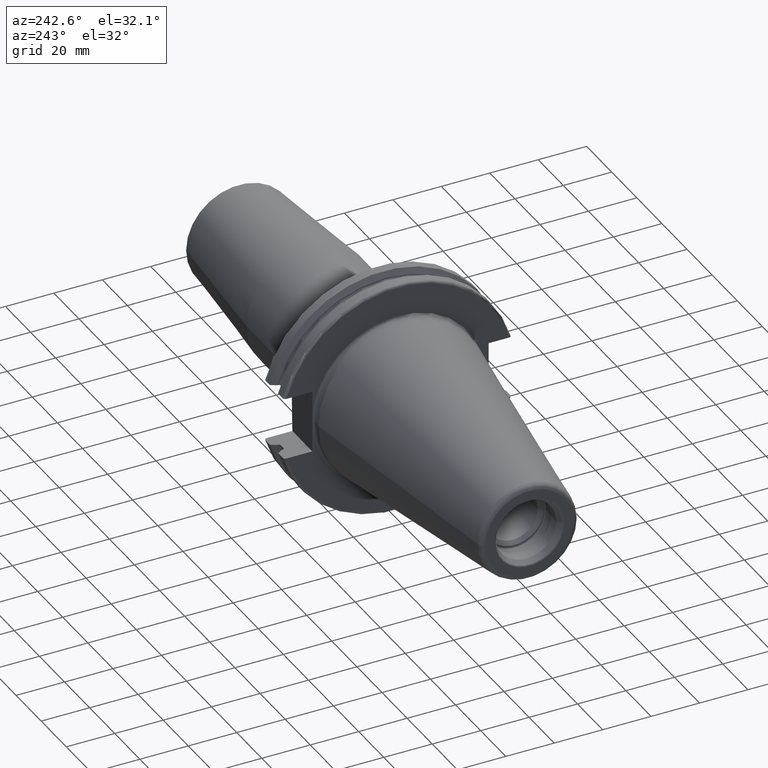
[diagram: clean part render]
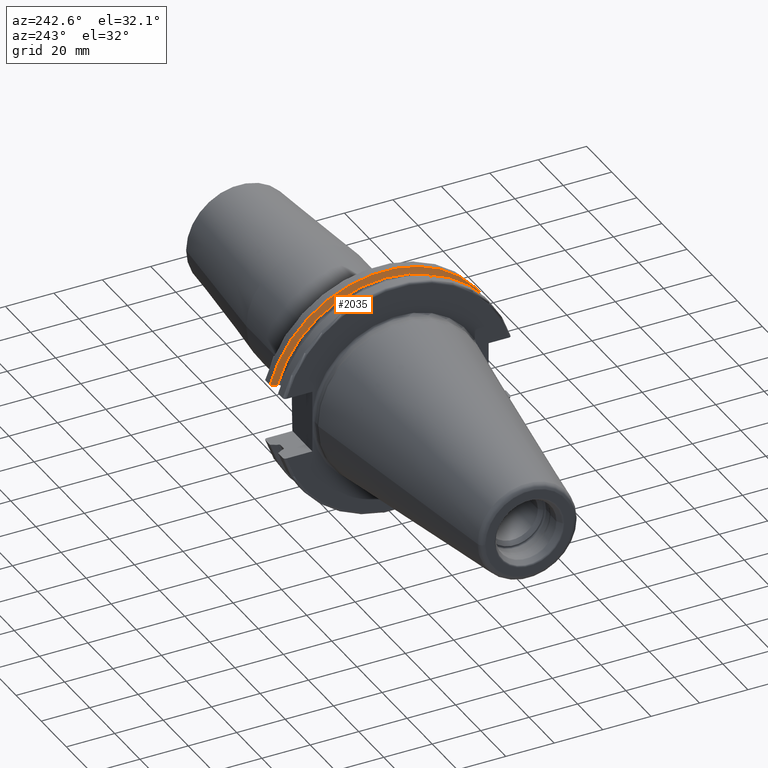
[diagram: same view with one face highlighted and labeled with its STEP entity id]
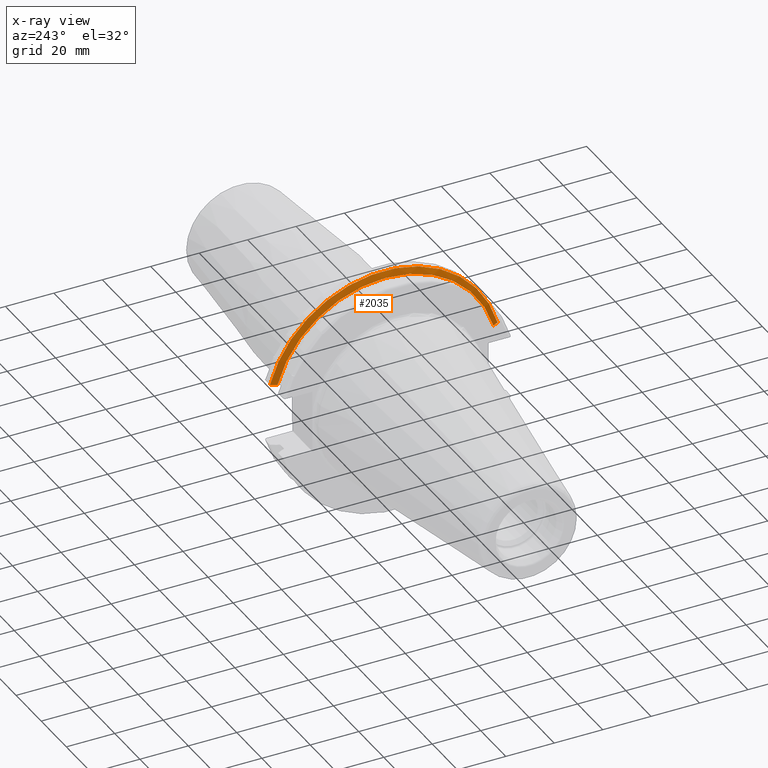
[diagram: x-ray of the same camera — body ghosted, the highlighted face saturated]
A machine part, auxiliary view. The second image highlights one B-rep face of the part: STEP entity #2035.
The next image is the same camera in x-ray: the body ghosted, the highlighted face saturated — about 0% of this face is hidden behind the body in this view.
In plain terms, the highlighted conical surface has half-angle 60 deg.
Its self-contained STEP definition (entity closure, byte-faithful):
#408=CARTESIAN_POINT('',(1.441537838583E1,4.699929686974E1,1.29E1));
#409=CARTESIAN_POINT('',(1.426451908496E1,4.672833723043E1,1.29E1));
#410=CARTESIAN_POINT('',(1.396501135619E1,4.619006057422E1,1.29E1));
#411=CARTESIAN_POINT('',(1.352242021955E1,4.539363402665E1,1.29E1));
#412=CARTESIAN_POINT('',(1.323173924582E1,4.486988275438E1,1.29E1));
#413=CARTESIAN_POINT('',(1.30875E1,4.460981716077E1,1.29E1));
#415=CARTESIAN_POINT('',(1.30875E1,-4.460981716077E1,1.29E1));
#416=CARTESIAN_POINT('',(1.323171622645E1,-4.486984125009E1,1.29E1));
#417=CARTESIAN_POINT('',(1.352236645045E1,-4.539353719098E1,1.29E1));
#418=CARTESIAN_POINT('',(1.396495664446E1,-4.618996220278E1,1.29E1));
#419=CARTESIAN_POINT('',(1.426449561388E1,-4.672829507383E1,1.29E1));
#420=CARTESIAN_POINT('',(1.441537838583E1,-4.699929686974E1,1.29E1));
#422=CARTESIAN_POINT('',(1.30875E1,0.E0,0.E0));
#423=DIRECTION('',(1.E0,0.E0,0.E0));
#424=DIRECTION('',(0.E0,9.606411165078E-1,2.777924499957E-1));
#425=AXIS2_PLACEMENT_3D('',#422,#423,#424);
#453=CARTESIAN_POINT('',(1.441537838583E1,0.E0,0.E0));
#454=DIRECTION('',(1.E0,0.E0,0.E0));
#455=DIRECTION('',(0.E0,9.643354064066E-1,2.646832521159E-1));
#456=AXIS2_PLACEMENT_3D('',#453,#454,#455);
#1348=CARTESIAN_POINT('',(1.30875E1,4.460981716077E1,1.29E1));
#1349=VERTEX_POINT('',#1348);
#1358=CARTESIAN_POINT('',(1.30875E1,-4.460981716077E1,1.29E1));
#1359=VERTEX_POINT('',#1358);
#1360=VERTEX_POINT('',#408);
#1361=VERTEX_POINT('',#420);
#2023=CARTESIAN_POINT('',(1.375143919291E1,0.E0,0.E0));
#2024=DIRECTION('',(1.E0,0.E0,0.E0));
#2025=DIRECTION('',(0.E0,-1.E0,0.E0));
#2026=AXIS2_PLACEMENT_3D('',#2023,#2024,#2025);
#2027=CONICAL_SURFACE('',#2026,4.758752358474E1,6.E1);
#2028=ORIENTED_EDGE('',*,*,#1825,.F.);
#2030=ORIENTED_EDGE('',*,*,#2029,.T.);
#2031=ORIENTED_EDGE('',*,*,#1877,.F.);
#2032=ORIENTED_EDGE('',*,*,#1985,.F.);
#2033=EDGE_LOOP('',(#2028,#2030,#2031,#2032));
#2034=FACE_OUTER_BOUND('',#2033,.F.);
#2035=ADVANCED_FACE('',(#2034),#2027,.T.);
#414=B_SPLINE_CURVE_WITH_KNOTS('',3,(#408,#409,#410,#411,#412,#413),
.UNSPECIFIED.,.F.,.F.,(4,1,1,4),(0.E0,3.333333333333E-1,6.666666666667E-1,1.E0),
.UNSPECIFIED.);
#421=B_SPLINE_CURVE_WITH_KNOTS('',3,(#415,#416,#417,#418,#419,#420),
.UNSPECIFIED.,.F.,.F.,(4,1,1,4),(0.E0,3.333333333333E-1,6.666666666667E-1,1.E0),
.UNSPECIFIED.);
#426=CIRCLE('',#425,4.643754716948E1);
#457=CIRCLE('',#456,4.87375E1);
#1825=EDGE_CURVE('',#1360,#1349,#414,.T.);
#1877=EDGE_CURVE('',#1359,#1361,#421,.T.);
#1985=EDGE_CURVE('',#1349,#1359,#426,.T.);
#2029=EDGE_CURVE('',#1360,#1361,#457,.T.);